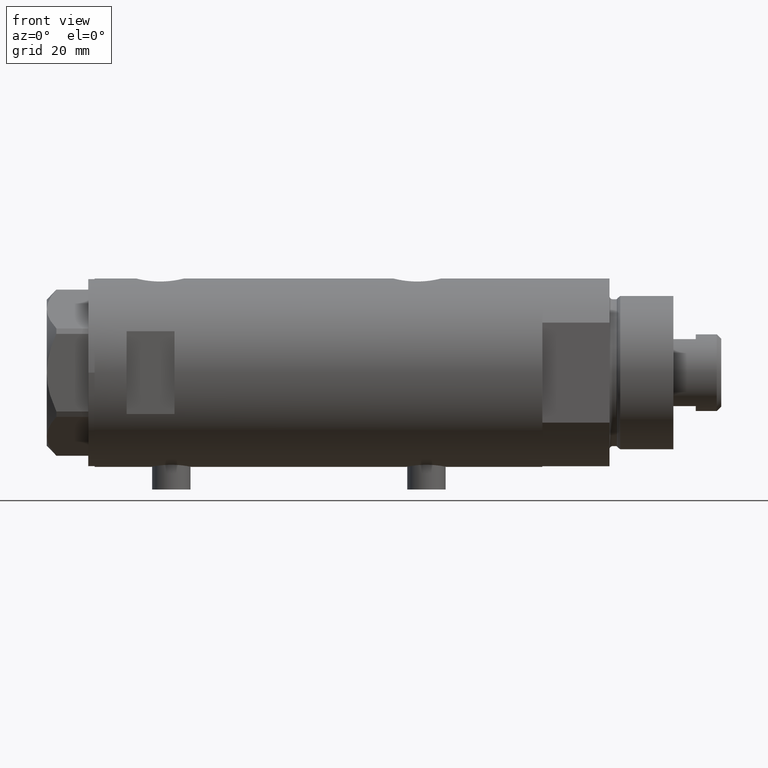
[diagram: clean part render]
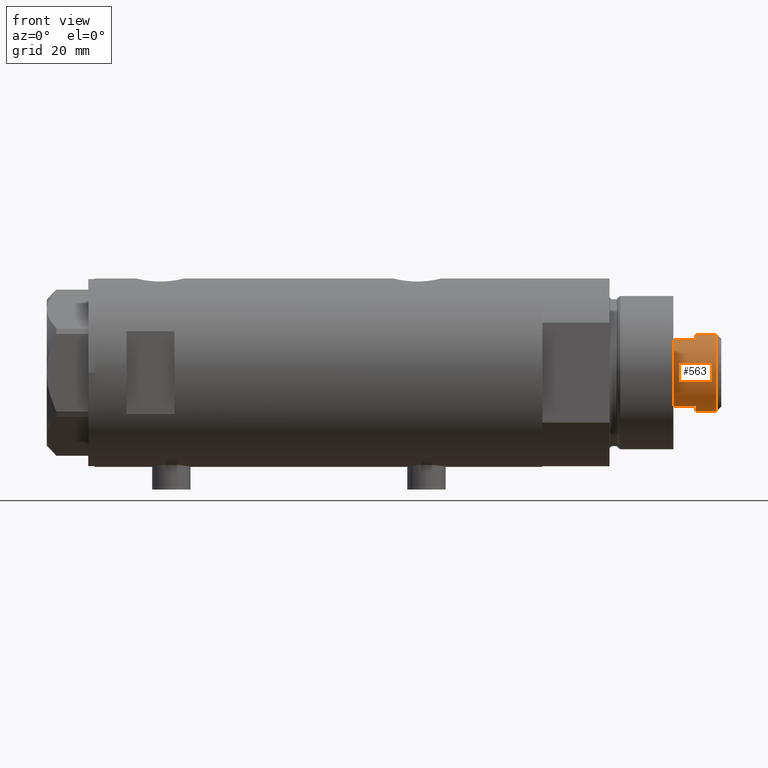
[diagram: same view with one face highlighted and labeled with its STEP entity id]
A machine part, front view. The second image highlights one B-rep face of the part: STEP entity #563.
In plain terms, the highlighted cylindrical surface (partial cylindrical patch) has radius 12 mm, axis along (-1, -0, 0).
Its self-contained STEP definition (entity closure, byte-faithful):
#71 = ORIENTED_EDGE ( 'NONE', *, *, #2006, .T. ) ;
#257 = CARTESIAN_POINT ( 'NONE',  ( 0.000000000000000000, 0.000000000000000000, 164.7000000000000171 ) ) ;
#338 = LINE ( 'NONE', #3440, #1685 ) ;
#563 = ADVANCED_FACE ( 'NONE', ( #1024 ), #948, .T. ) ;
#594 = CARTESIAN_POINT ( 'NONE',  ( 0.000000000000000000, 0.000000000000000000, 164.7000000000000171 ) ) ;
#626 = DIRECTION ( 'NONE',  ( -1.000000000000000000, 0.000000000000000000, 0.000000000000000000 ) ) ;
#634 = DIRECTION ( 'NONE',  ( 0.000000000000000000, 0.000000000000000000, 1.000000000000000000 ) ) ;
#650 = CARTESIAN_POINT ( 'NONE',  ( -12.00000000000000355, 0.000000000000000000, 164.7000000000000171 ) ) ;
#698 = CIRCLE ( 'NONE', #1541, 12.00000000000000000 ) ;
#828 = DIRECTION ( 'NONE',  ( 0.000000000000000000, 0.000000000000000000, 1.000000000000000000 ) ) ;
#948 = CYLINDRICAL_SURFACE ( 'NONE', #3986, 12.00000000000000000 ) ;
#979 = CARTESIAN_POINT ( 'NONE',  ( 12.00000000000000000, 1.469576158976823947E-15, 171.3000000000000114 ) ) ;
#1008 = ORIENTED_EDGE ( 'NONE', *, *, #1168, .T. ) ;
#1024 = FACE_OUTER_BOUND ( 'NONE', #3788, .T. ) ;
#1088 = EDGE_CURVE ( 'NONE', #2643, #3030, #3147, .T. ) ;
#1091 = ORIENTED_EDGE ( 'NONE', *, *, #3762, .T. ) ;
#1168 = EDGE_CURVE ( 'NONE', #1311, #3030, #2786, .T. ) ;
#1255 = DIRECTION ( 'NONE',  ( 1.000000000000000000, 0.000000000000000000, 0.000000000000000000 ) ) ;
#1308 = ORIENTED_EDGE ( 'NONE', *, *, #1088, .F. ) ;
#1311 = VERTEX_POINT ( 'NONE', #2747 ) ;
#1415 = ORIENTED_EDGE ( 'NONE', *, *, #2676, .F. ) ;
#1435 = DIRECTION ( 'NONE',  ( -0.000000000000000000, -0.000000000000000000, -1.000000000000000000 ) ) ;
#1486 = DIRECTION ( 'NONE',  ( -0.000000000000000000, -0.000000000000000000, -1.000000000000000000 ) ) ;
#1487 = CARTESIAN_POINT ( 'NONE',  ( 10.48861764008966446, -5.829999999999997407, 164.7000000000000171 ) ) ;
#1496 = CARTESIAN_POINT ( 'NONE',  ( 0.000000000000000000, 0.000000000000000000, 157.7000000000000171 ) ) ;
#1541 = AXIS2_PLACEMENT_3D ( 'NONE', #1496, #828, #3403 ) ;
#1685 = VECTOR ( 'NONE', #1435, 1000.000000000000000 ) ;
#1712 = ORIENTED_EDGE ( 'NONE', *, *, #2070, .T. ) ;
#1832 = VECTOR ( 'NONE', #1486, 1000.000000000000000 ) ;
#1908 = VERTEX_POINT ( 'NONE', #3394 ) ;
#1915 = DIRECTION ( 'NONE',  ( 0.000000000000000000, 0.000000000000000000, 1.000000000000000000 ) ) ;
#2006 = EDGE_CURVE ( 'NONE', #2643, #2489, #2114, .T. ) ;
#2055 = AXIS2_PLACEMENT_3D ( 'NONE', #2532, #1915, #3236 ) ;
#2056 = VERTEX_POINT ( 'NONE', #2349 ) ;
#2070 = EDGE_CURVE ( 'NONE', #3467, #1908, #4206, .T. ) ;
#2114 = CIRCLE ( 'NONE', #3496, 12.00000000000000000 ) ;
#2116 = DIRECTION ( 'NONE',  ( -0.000000000000000000, -0.000000000000000000, -1.000000000000000000 ) ) ;
#2123 = VECTOR ( 'NONE', #2116, 1000.000000000000000 ) ;
#2161 = EDGE_CURVE ( 'NONE', #2489, #3467, #338, .T. ) ;
#2307 = CARTESIAN_POINT ( 'NONE',  ( 12.00000000000000355, 1.469576158976824342E-15, 164.7000000000000171 ) ) ;
#2349 = CARTESIAN_POINT ( 'NONE',  ( 10.48861764008966091, -5.829999999999960103, 157.7000000000000171 ) ) ;
#2423 = VECTOR ( 'NONE', #2879, 1000.000000000000000 ) ;
#2489 = VERTEX_POINT ( 'NONE', #3974 ) ;
#2532 = CARTESIAN_POINT ( 'NONE',  ( 0.000000000000000000, 0.000000000000000000, 164.7000000000000171 ) ) ;
#2541 = CARTESIAN_POINT ( 'NONE',  ( -10.48861764008966269, -5.829999999999964544, 157.7000000000000171 ) ) ;
#2643 = VERTEX_POINT ( 'NONE', #979 ) ;
#2676 = EDGE_CURVE ( 'NONE', #1311, #2056, #3223, .T. ) ;
#2747 = CARTESIAN_POINT ( 'NONE',  ( 10.48861764008966446, -5.829999999999997407, 164.7000000000000171 ) ) ;
#2786 = CIRCLE ( 'NONE', #2055, 12.00000000000000178 ) ;
#2808 = CARTESIAN_POINT ( 'NONE',  ( 12.00000000000000000, 1.469576158976823947E-15, 164.7000000000000171 ) ) ;
#2844 = AXIS2_PLACEMENT_3D ( 'NONE', #257, #634, #4127 ) ;
#2879 = DIRECTION ( 'NONE',  ( -0.000000000000000000, -0.000000000000000000, -1.000000000000000000 ) ) ;
#2998 = DIRECTION ( 'NONE',  ( -0.000000000000000000, -0.000000000000000000, -1.000000000000000000 ) ) ;
#3030 = VERTEX_POINT ( 'NONE', #2307 ) ;
#3147 = LINE ( 'NONE', #2808, #2123 ) ;
#3181 = LINE ( 'NONE', #3554, #1832 ) ;
#3223 = LINE ( 'NONE', #1487, #2423 ) ;
#3236 = DIRECTION ( 'NONE',  ( 1.000000000000000000, 0.000000000000000000, 0.000000000000000000 ) ) ;
#3255 = ORIENTED_EDGE ( 'NONE', *, *, #3377, .T. ) ;
#3377 = EDGE_CURVE ( 'NONE', #4039, #2056, #698, .T. ) ;
#3394 = CARTESIAN_POINT ( 'NONE',  ( -10.48861764008966091, -5.830000000000003624, 164.7000000000000171 ) ) ;
#3403 = DIRECTION ( 'NONE',  ( 1.000000000000000000, 0.000000000000000000, 0.000000000000000000 ) ) ;
#3440 = CARTESIAN_POINT ( 'NONE',  ( -12.00000000000000000, 0.000000000000000000, 164.7000000000000171 ) ) ;
#3467 = VERTEX_POINT ( 'NONE', #650 ) ;
#3496 = AXIS2_PLACEMENT_3D ( 'NONE', #4346, #3725, #1255 ) ;
#3554 = CARTESIAN_POINT ( 'NONE',  ( -10.48861764008966091, -5.830000000000000959, 164.7000000000000171 ) ) ;
#3725 = DIRECTION ( 'NONE',  ( 0.000000000000000000, 0.000000000000000000, -1.000000000000000000 ) ) ;
#3762 = EDGE_CURVE ( 'NONE', #1908, #4039, #3181, .T. ) ;
#3788 = EDGE_LOOP ( 'NONE', ( #1308, #71, #4161, #1712, #1091, #3255, #1415, #1008 ) ) ;
#3974 = CARTESIAN_POINT ( 'NONE',  ( -12.00000000000000000, 0.000000000000000000, 171.3000000000000114 ) ) ;
#3986 = AXIS2_PLACEMENT_3D ( 'NONE', #594, #2998, #626 ) ;
#4039 = VERTEX_POINT ( 'NONE', #2541 ) ;
#4127 = DIRECTION ( 'NONE',  ( 1.000000000000000000, 0.000000000000000000, 0.000000000000000000 ) ) ;
#4161 = ORIENTED_EDGE ( 'NONE', *, *, #2161, .T. ) ;
#4206 = CIRCLE ( 'NONE', #2844, 12.00000000000000178 ) ;
#4346 = CARTESIAN_POINT ( 'NONE',  ( 0.000000000000000000, 0.000000000000000000, 171.3000000000000114 ) ) ;